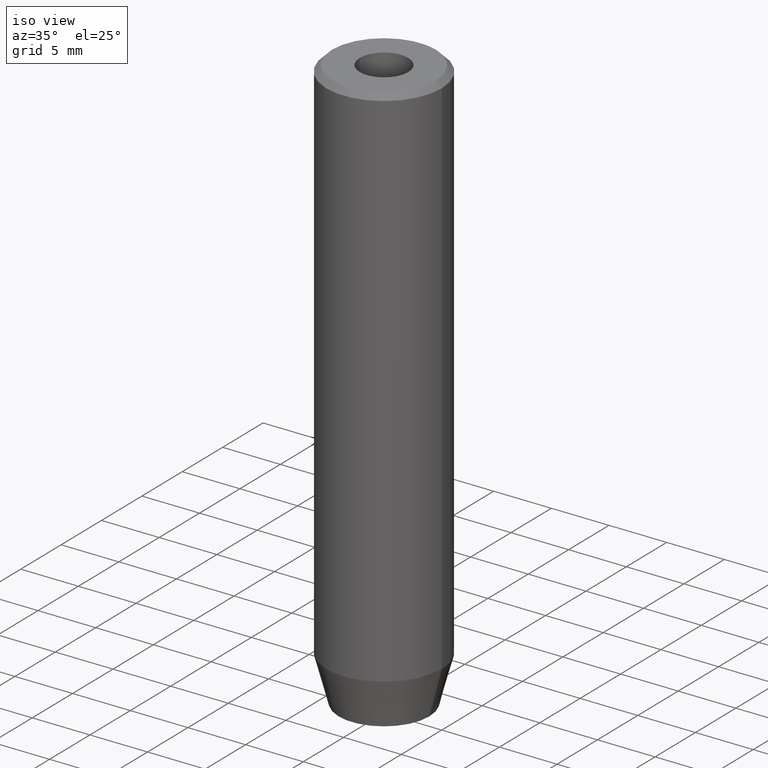
[diagram: clean part render]
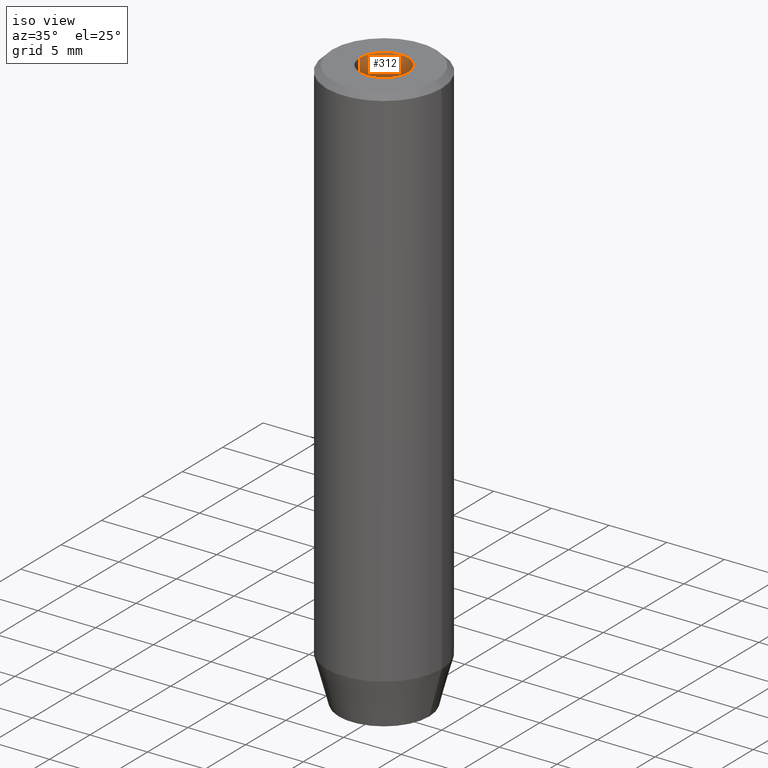
[diagram: same view with one face highlighted and labeled with its STEP entity id]
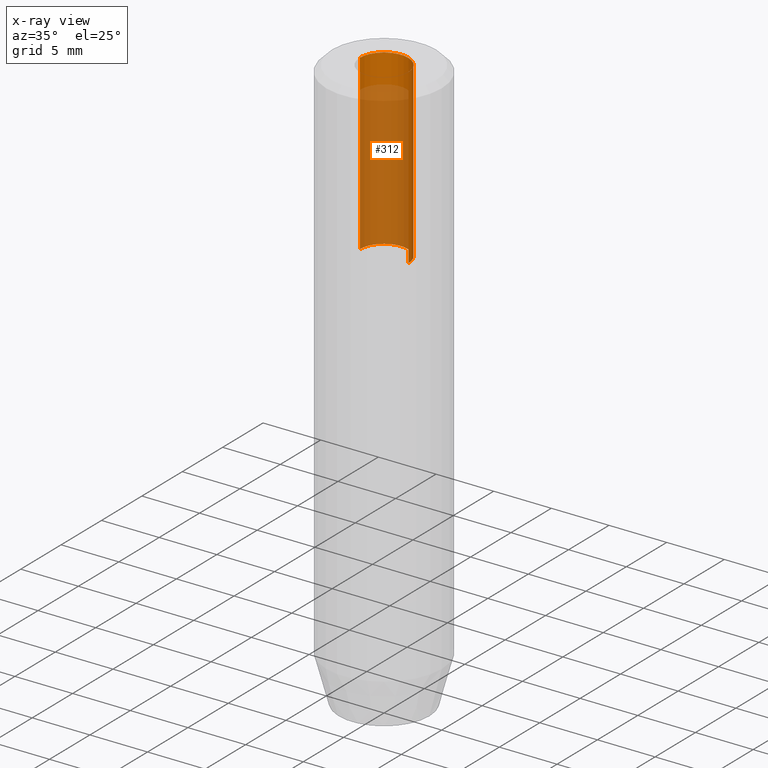
[diagram: x-ray of the same camera — body ghosted, the highlighted face saturated]
A machine part, iso view. The second image highlights one B-rep face of the part: STEP entity #312.
The next image is the same camera in x-ray: the body ghosted, the highlighted face saturated — about 75% of this face is hidden behind the body in this view.
In plain terms, the highlighted cylindrical surface (edge-blend (fillet) strip) has radius 2.1 mm, axis along (-0, -0, 1).
Its self-contained STEP definition (entity closure, byte-faithful):
#14 = ORIENTED_EDGE ( 'NONE', *, *, #470, .T. ) ;
#19 = CARTESIAN_POINT ( 'NONE',  ( 2.099999999999997868, 0.000000000000000000, 0.000000000000000000 ) ) ;
#34 = CARTESIAN_POINT ( 'NONE',  ( -2.099999999999998757, 2.571758278209439985E-16, -1.990051048614449116E-16 ) ) ;
#36 = LINE ( 'NONE', #39, #574 ) ;
#39 = CARTESIAN_POINT ( 'NONE',  ( -2.099999999999997868, 2.571758278209438999E-16, 0.000000000000000000 ) ) ;
#41 = CARTESIAN_POINT ( 'NONE',  ( 0.000000000000000000, 0.000000000000000000, -1.990051048614449116E-16 ) ) ;
#44 = FACE_OUTER_BOUND ( 'NONE', #53, .T. ) ;
#53 = EDGE_LOOP ( 'NONE', ( #232, #425, #14, #280 ) ) ;
#91 = EDGE_CURVE ( 'NONE', #335, #299, #36, .T. ) ;
#101 = EDGE_CURVE ( 'NONE', #379, #335, #484, .T. ) ;
#113 = VERTEX_POINT ( 'NONE', #585 ) ;
#114 = AXIS2_PLACEMENT_3D ( 'NONE', #41, #134, #454 ) ;
#127 = DIRECTION ( 'NONE',  ( -0.000000000000000000, -0.000000000000000000, 1.000000000000000000 ) ) ;
#133 = DIRECTION ( 'NONE',  ( -0.000000000000000000, -0.000000000000000000, 1.000000000000000000 ) ) ;
#134 = DIRECTION ( 'NONE',  ( -0.000000000000000000, -0.000000000000000000, 1.000000000000000000 ) ) ;
#199 = DIRECTION ( 'NONE',  ( -0.000000000000000000, -0.000000000000000000, 1.000000000000000000 ) ) ;
#219 = CARTESIAN_POINT ( 'NONE',  ( 0.000000000000000000, 0.000000000000000000, -15.00000000000000000 ) ) ;
#232 = ORIENTED_EDGE ( 'NONE', *, *, #91, .F. ) ;
#271 = CYLINDRICAL_SURFACE ( 'NONE', #420, 2.099999999999997868 ) ;
#280 = ORIENTED_EDGE ( 'NONE', *, *, #284, .T. ) ;
#284 = EDGE_CURVE ( 'NONE', #113, #299, #565, .T. ) ;
#299 = VERTEX_POINT ( 'NONE', #34 ) ;
#308 = DIRECTION ( 'NONE',  ( 1.000000000000000000, 0.000000000000000000, 0.000000000000000000 ) ) ;
#312 = ADVANCED_FACE ( 'NONE', ( #44 ), #271, .F. ) ;
#335 = VERTEX_POINT ( 'NONE', #353 ) ;
#344 = DIRECTION ( 'NONE',  ( 1.000000000000000000, 0.000000000000000000, 0.000000000000000000 ) ) ;
#353 = CARTESIAN_POINT ( 'NONE',  ( -2.099999999999996980, 2.571758278209438013E-16, -15.00000000000000000 ) ) ;
#379 = VERTEX_POINT ( 'NONE', #500 ) ;
#420 = AXIS2_PLACEMENT_3D ( 'NONE', #445, #127, #308 ) ;
#424 = LINE ( 'NONE', #19, #476 ) ;
#425 = ORIENTED_EDGE ( 'NONE', *, *, #101, .F. ) ;
#445 = CARTESIAN_POINT ( 'NONE',  ( 0.000000000000000000, 0.000000000000000000, 0.000000000000000000 ) ) ;
#447 = AXIS2_PLACEMENT_3D ( 'NONE', #219, #133, #344 ) ;
#454 = DIRECTION ( 'NONE',  ( 1.000000000000000000, 0.000000000000000000, 0.000000000000000000 ) ) ;
#470 = EDGE_CURVE ( 'NONE', #379, #113, #424, .T. ) ;
#476 = VECTOR ( 'NONE', #199, 1000.000000000000000 ) ;
#484 = CIRCLE ( 'NONE', #447, 2.099999999999996980 ) ;
#500 = CARTESIAN_POINT ( 'NONE',  ( 2.099999999999996980, 0.000000000000000000, -15.00000000000000000 ) ) ;
#542 = DIRECTION ( 'NONE',  ( -0.000000000000000000, -0.000000000000000000, 1.000000000000000000 ) ) ;
#565 = CIRCLE ( 'NONE', #114, 2.099999999999998757 ) ;
#574 = VECTOR ( 'NONE', #542, 1000.000000000000000 ) ;
#585 = CARTESIAN_POINT ( 'NONE',  ( 2.099999999999998757, 0.000000000000000000, -1.990051048614449116E-16 ) ) ;